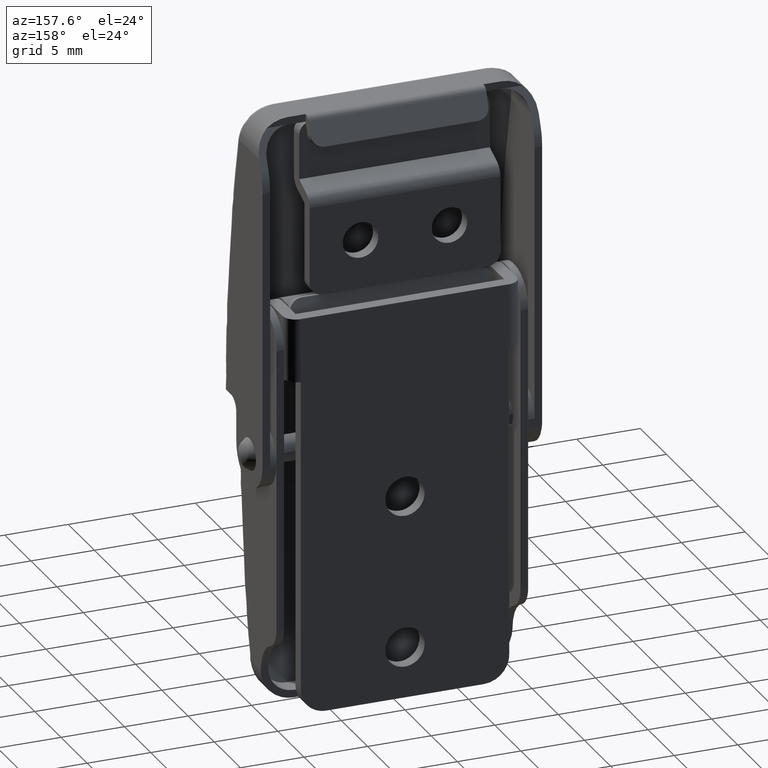
[diagram: clean part render]
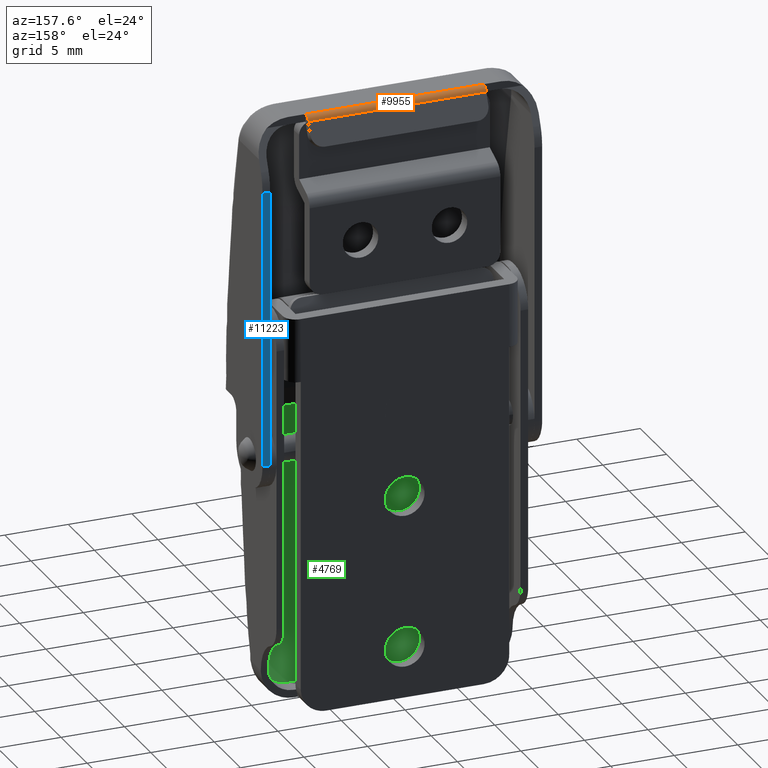
[diagram: same view with three faces highlighted in distinct colors, each labeled with its STEP entity id]
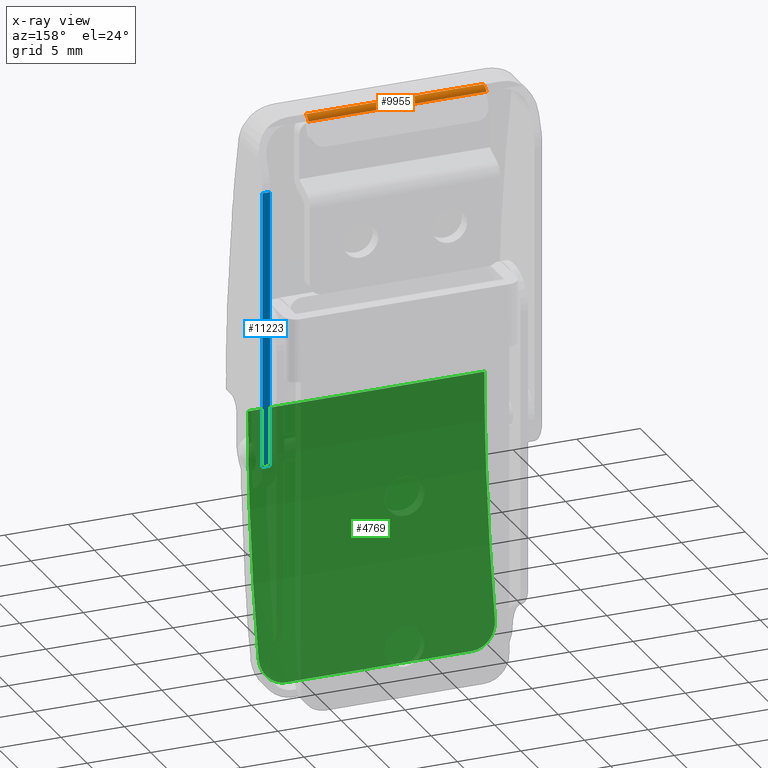
[diagram: x-ray of the same camera — body ghosted, the three highlighted faces saturated]
A machine part, auxiliary view with three faces highlighted in distinct colors.
The next image is the same camera in x-ray (body ghosted, the three faces saturated) — at least one of them is partly hidden behind the body in this view.
Their STEP definitions:

[orange] entity #9955 — the highlighted face is a freeform B-spline surface patch.
#9846=CARTESIAN_POINT('',(-6.999999999990241,-1.445672280502128,30.429610059438399));
#9847=VERTEX_POINT('',#9846);
#9861=CARTESIAN_POINT('',(-6.999999999990241,-2.000000000008770,30.800000000018901));
#9862=VERTEX_POINT('',#9861);
#9868=CARTESIAN_POINT('',(-6.999999999990241,-1.445672280502139,30.429610059438399));
#9869=CARTESIAN_POINT('',(-6.999999999990243,-1.599092817257457,30.800000000019004));
#9870=CARTESIAN_POINT('',(-6.999999999990241,-2.000000000008770,30.800000000018901));
#9878=(BOUNDED_CURVE()B_SPLINE_CURVE(2,(#9868,#9869,#9870),.UNSPECIFIED.,.F.,.U.)CURVE()GEOMETRIC_REPRESENTATION_ITEM()QUASI_UNIFORM_CURVE()RATIONAL_B_SPLINE_CURVE((1.0,0.831469612302716,1.0))REPRESENTATION_ITEM(''));
#9879=EDGE_CURVE('',#9847,#9862,#9878,.T.);
#9897=CARTESIAN_POINT('',(7.000000000009671,-1.445672280502128,30.429610059438399));
#9898=VERTEX_POINT('',#9897);
#9904=CARTESIAN_POINT('',(7.000000000009671,-2.000000000008770,30.800000000018901));
#9905=VERTEX_POINT('',#9904);
#9906=CARTESIAN_POINT('',(7.000000000009671,-1.445672280502139,30.429610059438399));
#9907=CARTESIAN_POINT('',(7.000000000009671,-1.599092817257457,30.800000000019004));
#9908=CARTESIAN_POINT('',(7.000000000009671,-2.000000000008770,30.800000000018901));
#9916=(BOUNDED_CURVE()B_SPLINE_CURVE(2,(#9906,#9907,#9908),.UNSPECIFIED.,.F.,.U.)CURVE()GEOMETRIC_REPRESENTATION_ITEM()QUASI_UNIFORM_CURVE()RATIONAL_B_SPLINE_CURVE((1.0,0.831469612302716,1.0))REPRESENTATION_ITEM(''));
#9917=EDGE_CURVE('',#9898,#9905,#9916,.T.);
#9927=CARTESIAN_POINT('',(7.350000000009669,-1.437996686459731,30.410124428774679));
#9928=CARTESIAN_POINT('',(-7.358749999990240,-1.437996686459731,30.410124428774679));
#9929=CARTESIAN_POINT('',(7.350000000009669,-1.592558716390905,30.823519356173556));
#9930=CARTESIAN_POINT('',(-7.358749999990240,-1.592558716390905,30.823519356173556));
#9931=CARTESIAN_POINT('',(7.350000000009670,-2.033225792925599,30.799079332566066));
#9932=CARTESIAN_POINT('',(-7.358749999990240,-2.033225792925599,30.799079332566066));
#9940=(BOUNDED_SURFACE()B_SPLINE_SURFACE(1,2,((#9927,#9929,#9931),(#9928,#9930,#9932)),.UNSPECIFIED.,.F.,.F.,.U.)B_SPLINE_SURFACE_WITH_KNOTS((2,2),(3,3),(0.0,14.708749999999910),(0.0,0.980852107232250),.UNSPECIFIED.)GEOMETRIC_REPRESENTATION_ITEM()RATIONAL_B_SPLINE_SURFACE(((1.0,0.802491215708140,0.992436245955382),(1.0,0.802491215708140,0.992436245955382)))REPRESENTATION_ITEM('')SURFACE());
#9941=ORIENTED_EDGE('',*,*,#9879,.T.);
#9942=CARTESIAN_POINT('',(7.000000000009671,-2.000000000008770,30.800000000018901));
#9943=CARTESIAN_POINT('',(-6.999999999990241,-2.000000000008770,30.800000000018901));
#9944=QUASI_UNIFORM_CURVE('',1,(#9942,#9943),.UNSPECIFIED.,.F.,.U.);
#9945=EDGE_CURVE('',#9905,#9862,#9944,.T.);
#9946=ORIENTED_EDGE('',*,*,#9945,.F.);
#9947=ORIENTED_EDGE('',*,*,#9917,.F.);
#9948=CARTESIAN_POINT('',(7.000000000009671,-1.445672280502128,30.429610059438399));
#9949=CARTESIAN_POINT('',(-6.999999999990241,-1.445672280502128,30.429610059438399));
#9950=QUASI_UNIFORM_CURVE('',1,(#9948,#9949),.UNSPECIFIED.,.F.,.U.);
#9951=EDGE_CURVE('',#9898,#9847,#9950,.T.);
#9952=ORIENTED_EDGE('',*,*,#9951,.T.);
#9953=EDGE_LOOP('',(#9941,#9946,#9947,#9952));
#9954=FACE_OUTER_BOUND('',#9953,.T.);
#9955=ADVANCED_FACE('',(#9954),#9940,.T.);

[blue] entity #11223 — the highlighted face is a freeform B-spline surface patch.
#11157=CARTESIAN_POINT('',(11.000000000008219,-0.500000000019568,25.783030186976749));
#11158=VERTEX_POINT('',#11157);
#11159=CARTESIAN_POINT('',(10.400000000008180,-0.500000000019568,25.783030186976749));
#11160=VERTEX_POINT('',#11159);
#11161=CARTESIAN_POINT('',(11.000000000008219,-0.500000000019568,25.783030186976749));
#11162=CARTESIAN_POINT('',(10.400000000008180,-0.500000000019568,25.783030186976749));
#11163=QUASI_UNIFORM_CURVE('',1,(#11161,#11162),.UNSPECIFIED.,.F.,.U.);
#11164=EDGE_CURVE('',#11158,#11160,#11163,.T.);
#11196=CARTESIAN_POINT('',(10.370029601272771,-0.500000000021158,26.871091889144829));
#11197=CARTESIAN_POINT('',(10.370029601272771,-0.499999999986154,2.911937129322398));
#11198=CARTESIAN_POINT('',(11.029970033963201,-0.500000000021158,26.871091889144829));
#11199=CARTESIAN_POINT('',(11.029970033963201,-0.499999999986154,2.911937129322398));
#11200=B_SPLINE_SURFACE_WITH_KNOTS('',1,1,((#11196,#11198),(#11197,#11199)),.UNSPECIFIED.,.F.,.F.,.U.,(2,2),(2,2),(0.0,23.959154759822429),(0.041707779534161,0.958291713826358),.UNSPECIFIED.);
#11201=CARTESIAN_POINT('',(11.000000000008219,-0.499999999987744,4.000000000023280));
#11202=VERTEX_POINT('',#11201);
#11203=CARTESIAN_POINT('',(10.400000000008180,-0.499999999987744,4.000000000023280));
#11204=VERTEX_POINT('',#11203);
#11205=CARTESIAN_POINT('',(11.000000000008219,-0.499999999987744,4.000000000023280));
#11206=CARTESIAN_POINT('',(10.400000000008180,-0.499999999987744,4.000000000023280));
#11207=QUASI_UNIFORM_CURVE('',1,(#11205,#11206),.UNSPECIFIED.,.F.,.U.);
#11208=EDGE_CURVE('',#11202,#11204,#11207,.T.);
#11209=ORIENTED_EDGE('',*,*,#11208,.T.);
#11210=CARTESIAN_POINT('',(10.400000000008180,-0.499999999987744,4.000000000023280));
#11211=CARTESIAN_POINT('',(10.400000000008180,-0.500000000019568,25.783030186976749));
#11212=QUASI_UNIFORM_CURVE('',1,(#11210,#11211),.UNSPECIFIED.,.F.,.U.);
#11213=EDGE_CURVE('',#11204,#11160,#11212,.T.);
#11214=ORIENTED_EDGE('',*,*,#11213,.T.);
#11215=ORIENTED_EDGE('',*,*,#11164,.F.);
#11216=CARTESIAN_POINT('',(11.000000000008219,-0.499999999987744,4.000000000023280));
#11217=CARTESIAN_POINT('',(11.000000000008219,-0.500000000019568,25.783030186976749));
#11218=QUASI_UNIFORM_CURVE('',1,(#11216,#11217),.UNSPECIFIED.,.F.,.U.);
#11219=EDGE_CURVE('',#11202,#11158,#11218,.T.);
#11220=ORIENTED_EDGE('',*,*,#11219,.F.);
#11221=EDGE_LOOP('',(#11209,#11214,#11215,#11220));
#11222=FACE_OUTER_BOUND('',#11221,.T.);
#11223=ADVANCED_FACE('',(#11222),#11200,.F.);

[green] entity #4769 — the highlighted face is a freeform B-spline surface patch.
#4284=CARTESIAN_POINT('',(7.300000000002100,-4.939648160122570,-15.599999999982501));
#4285=VERTEX_POINT('',#4284);
#4291=CARTESIAN_POINT('',(9.300000000002079,-5.393124731414350,-13.599999999982741));
#4292=VERTEX_POINT('',#4291);
#4293=CARTESIAN_POINT('',(9.300000000002100,-5.393124731414350,-13.599999999982741));
#4294=CARTESIAN_POINT('',(9.300000000002104,-5.365047220274593,-13.730721055001879));
#4295=CARTESIAN_POINT('',(9.287307648776791,-5.337131474198698,-13.859271206353849));
#4296=CARTESIAN_POINT('',(9.250018094951136,-5.295512838245148,-14.048979667344380));
#4297=CARTESIAN_POINT('',(9.234524176497610,-5.281683212257709,-14.111692661198790));
#4298=CARTESIAN_POINT('',(9.197274750078568,-5.254121943260831,-14.236051642312370));
#4299=CARTESIAN_POINT('',(9.175381459746800,-5.240326904445881,-14.297978797311391));
#4300=CARTESIAN_POINT('',(9.101416642141221,-5.199913971345310,-14.478531823949620));
#4301=CARTESIAN_POINT('',(9.041006899534425,-5.174069927941296,-14.592837582418939));
#4302=CARTESIAN_POINT('',(8.933863589222922,-5.137041103153358,-14.755291151228800));
#4303=CARTESIAN_POINT('',(8.895375298968311,-5.124989888007693,-14.807931147201550));
#4304=CARTESIAN_POINT('',(8.812625312139840,-5.101515363259232,-14.910070481313049));
#4305=CARTESIAN_POINT('',(8.768813976331105,-5.090226360697599,-14.958984920885650));
#4306=CARTESIAN_POINT('',(8.631310418709846,-5.057983896911238,-15.098209137000939));
#4307=CARTESIAN_POINT('',(8.531172930053486,-5.038514968188546,-15.181612162378400));
#4308=CARTESIAN_POINT('',(8.367949991812939,-5.012553525859439,-15.292277686703500));
#4309=CARTESIAN_POINT('',(8.311015193326156,-5.004404561582415,-15.326908329993920));
#4310=CARTESIAN_POINT('',(8.194853953606410,-4.989558279305998,-15.389860470274421));
#4311=CARTESIAN_POINT('',(8.135542106516317,-4.982835837071779,-15.418290234770870));
#4312=CARTESIAN_POINT('',(7.953979330080033,-4.964758240675845,-15.494611040425930));
#4313=CARTESIAN_POINT('',(7.828138224988400,-4.955472655373131,-15.533625506347329));
#4314=CARTESIAN_POINT('',(7.566345281007154,-4.942831451338641,-15.586680088683901));
#4315=CARTESIAN_POINT('',(7.433797009616352,-4.939648160122567,-15.599999999982490));
#4316=CARTESIAN_POINT('',(7.300000000002100,-4.939648160122570,-15.599999999982501));
#4317=B_SPLINE_CURVE_WITH_KNOTS('',3,(#4293,#4294,#4295,#4296,#4297,#4298,#4299,#4300,#4301,#4302,#4303,#4304,#4305,#4306,#4307,#4308,#4309,#4310,#4311,#4312,#4313,#4314,#4315,#4316),.UNSPECIFIED.,.F.,.U.,(4,2,2,2,2,2,2,2,2,2,2,4),(0.0,0.125000000000000,0.187500000000000,0.250000000000000,0.375000000000002,0.437500000000002,0.500000000000003,0.625000000000004,0.687500000000003,0.750000000000002,0.875000000000002,1.0),.UNSPECIFIED.);
#4318=EDGE_CURVE('',#4292,#4285,#4317,.T.);
#4362=CARTESIAN_POINT('',(-9.299999999997871,-5.393124731414350,-13.599999999982741));
#4363=VERTEX_POINT('',#4362);
#4369=CARTESIAN_POINT('',(-7.299999999997870,-4.939648160122570,-15.599999999982501));
#4370=VERTEX_POINT('',#4369);
#4371=CARTESIAN_POINT('',(-7.299999999997860,-4.939648160122570,-15.599999999982501));
#4372=CARTESIAN_POINT('',(-7.433734591788385,-4.939648160122571,-15.599999999982501));
#4373=CARTESIAN_POINT('',(-7.565129503173004,-4.942821358223378,-15.586721655563229));
#4374=CARTESIAN_POINT('',(-7.758867797960354,-4.952104309905102,-15.547762688696119));
#4375=CARTESIAN_POINT('',(-7.822883958768115,-4.955957747208898,-15.531578499216220));
#4376=CARTESIAN_POINT('',(-7.949765157353869,-4.965205299280652,-15.492672283640561));
#4377=CARTESIAN_POINT('',(-8.012605346212711,-4.970609857037293,-15.469905556772240));
#4378=CARTESIAN_POINT('',(-8.195140647002328,-4.988741573821560,-15.393358833330961));
#4379=CARTESIAN_POINT('',(-8.310389354797115,-5.003466400755540,-15.331005306492591));
#4380=CARTESIAN_POINT('',(-8.473733121468097,-5.029346202656438,-15.220699560181220));
#4381=CARTESIAN_POINT('',(-8.526855316637475,-5.038666030449631,-15.180871021525761));
#4382=CARTESIAN_POINT('',(-8.628082867468807,-5.058261869008441,-15.096837683852170));
#4383=CARTESIAN_POINT('',(-8.676238686917024,-5.068533225012802,-15.052654355501749));
#4384=CARTESIAN_POINT('',(-8.813564078351259,-5.100691334645227,-14.913801423579550));
#4385=CARTESIAN_POINT('',(-8.895659505578218,-5.123909562305649,-14.812888864625529));
#4386=CARTESIAN_POINT('',(-9.040491491327851,-5.173821453888178,-14.593940654313490));
#4387=CARTESIAN_POINT('',(-9.101009490388988,-5.199756072724326,-14.479226911574161));
#4388=CARTESIAN_POINT('',(-9.174593133298920,-5.239864546704419,-14.300049549098260));
#4389=CARTESIAN_POINT('',(-9.196248163731218,-5.253442087315570,-14.239108718461329));
#4390=CARTESIAN_POINT('',(-9.233713353168106,-5.281007374490592,-14.114752095916881));
#4391=CARTESIAN_POINT('',(-9.249541534833487,-5.295040665438500,-14.051126346864820));
#4392=CARTESIAN_POINT('',(-9.287316970055255,-5.337024666498660,-13.859769066893600));
#4393=CARTESIAN_POINT('',(-9.299999999997860,-5.365059447163469,-13.730664130019949));
#4394=CARTESIAN_POINT('',(-9.299999999997860,-5.393124731414350,-13.599999999982741));
#4395=B_SPLINE_CURVE_WITH_KNOTS('',3,(#4371,#4372,#4373,#4374,#4375,#4376,#4377,#4378,#4379,#4380,#4381,#4382,#4383,#4384,#4385,#4386,#4387,#4388,#4389,#4390,#4391,#4392,#4393,#4394),.UNSPECIFIED.,.F.,.U.,(4,2,2,2,2,2,2,2,2,2,2,4),(0.0,0.125000000000002,0.187500000000003,0.250000000000004,0.375000000000004,0.437500000000004,0.500000000000003,0.625000000000003,0.750000000000003,0.812500000000002,0.875000000000002,1.0),.UNSPECIFIED.);
#4396=EDGE_CURVE('',#4370,#4363,#4395,.T.);
#4426=CARTESIAN_POINT('',(-9.299999999997901,-7.400000000000881,5.300000000016310));
#4427=VERTEX_POINT('',#4426);
#4428=CARTESIAN_POINT('',(-9.299999999997871,-5.393124731414345,-13.599999999982760));
#4429=CARTESIAN_POINT('',(-9.299999999997871,-7.399999999995425,-4.256548897963119));
#4430=CARTESIAN_POINT('',(-9.299999999997901,-7.400000000000881,5.300000000016310));
#4438=(BOUNDED_CURVE()B_SPLINE_CURVE(2,(#4428,#4429,#4430),.UNSPECIFIED.,.F.,.U.)CURVE()GEOMETRIC_REPRESENTATION_ITEM()QUASI_UNIFORM_CURVE()RATIONAL_B_SPLINE_CURVE((1.0,0.994409720865779,1.0))REPRESENTATION_ITEM(''));
#4439=EDGE_CURVE('',#4363,#4427,#4438,.T.);
#4571=CARTESIAN_POINT('',(9.300000000002100,-7.400000000000881,5.300000000016310));
#4572=VERTEX_POINT('',#4571);
#4573=CARTESIAN_POINT('',(9.300000000002079,-5.393124731414345,-13.599999999982760));
#4574=CARTESIAN_POINT('',(9.300000000002079,-7.399999999995425,-4.256548897963119));
#4575=CARTESIAN_POINT('',(9.300000000002100,-7.400000000000881,5.300000000016310));
#4583=(BOUNDED_CURVE()B_SPLINE_CURVE(2,(#4573,#4574,#4575),.UNSPECIFIED.,.F.,.U.)CURVE()GEOMETRIC_REPRESENTATION_ITEM()QUASI_UNIFORM_CURVE()RATIONAL_B_SPLINE_CURVE((1.0,0.994409720865779,1.0))REPRESENTATION_ITEM(''));
#4584=EDGE_CURVE('',#4292,#4572,#4583,.T.);
#4696=CARTESIAN_POINT('',(7.300000000002100,-4.939648160122570,-15.599999999982501));
#4697=CARTESIAN_POINT('',(-7.299999999997870,-4.939648160122570,-15.599999999982501));
#4698=QUASI_UNIFORM_CURVE('',1,(#4696,#4697),.UNSPECIFIED.,.F.,.U.);
#4699=EDGE_CURVE('',#4285,#4370,#4698,.T.);
#4739=CARTESIAN_POINT('',(9.300000000002100,-7.400000000000881,5.300000000016310));
#4740=CARTESIAN_POINT('',(-9.299999999997901,-7.400000000000881,5.300000000016310));
#4741=QUASI_UNIFORM_CURVE('',1,(#4739,#4740),.UNSPECIFIED.,.F.,.U.);
#4742=EDGE_CURVE('',#4572,#4427,#4741,.T.);
#4747=CARTESIAN_POINT('',(9.765000000002102,-7.393881809127707,6.349398363375164));
#4748=CARTESIAN_POINT('',(-9.776624069211765,-7.393881809127707,6.349398363375164));
#4749=CARTESIAN_POINT('',(9.765000000002102,-7.529856860646059,-5.311495290742875));
#4750=CARTESIAN_POINT('',(-9.776624069211765,-7.529856860646059,-5.311495290742875));
#4751=CARTESIAN_POINT('',(9.765000000002100,-4.689335767795834,-16.621949302335807));
#4752=CARTESIAN_POINT('',(-9.776624069211763,-4.689335767795834,-16.621949302335807));
#4760=(BOUNDED_SURFACE()B_SPLINE_SURFACE(1,2,((#4747,#4749,#4751),(#4748,#4750,#4752)),.UNSPECIFIED.,.F.,.F.,.U.)B_SPLINE_SURFACE_WITH_KNOTS((2,2),(3,3),(0.0,19.541624069213871),(2.219976126492024,25.448879302203650),.UNSPECIFIED.)GEOMETRIC_REPRESENTATION_ITEM()RATIONAL_B_SPLINE_SURFACE(((0.998009314582810,0.988384215602789,0.995286376242349),(0.998009314582810,0.988384215602789,0.995286376242349)))REPRESENTATION_ITEM('')SURFACE());
#4761=ORIENTED_EDGE('',*,*,#4699,.T.);
#4762=ORIENTED_EDGE('',*,*,#4396,.T.);
#4763=ORIENTED_EDGE('',*,*,#4439,.T.);
#4764=ORIENTED_EDGE('',*,*,#4742,.F.);
#4765=ORIENTED_EDGE('',*,*,#4584,.F.);
#4766=ORIENTED_EDGE('',*,*,#4318,.T.);
#4767=EDGE_LOOP('',(#4761,#4762,#4763,#4764,#4765,#4766));
#4768=FACE_OUTER_BOUND('',#4767,.T.);
#4769=ADVANCED_FACE('',(#4768),#4760,.F.);